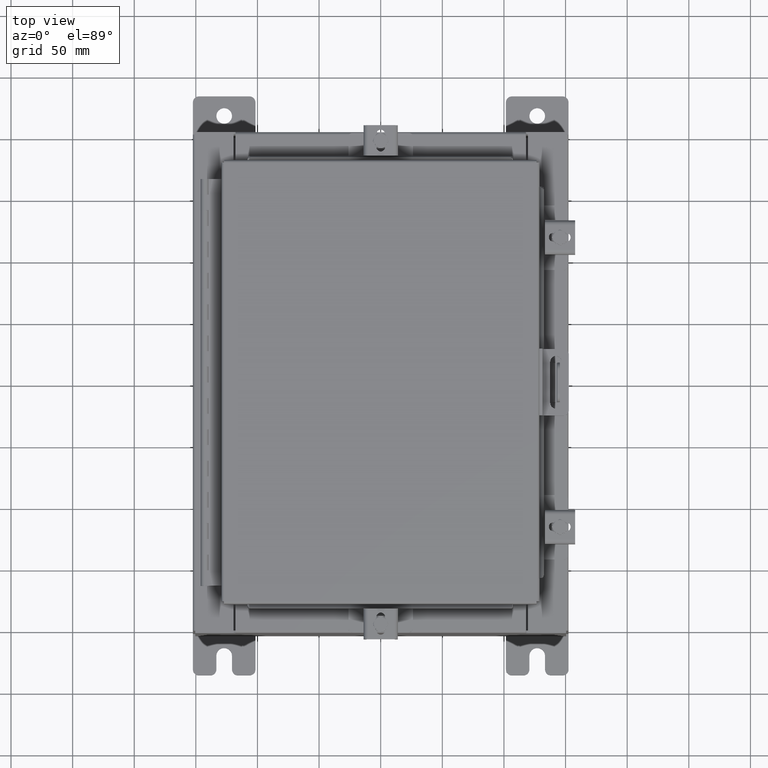
[diagram: clean part render]
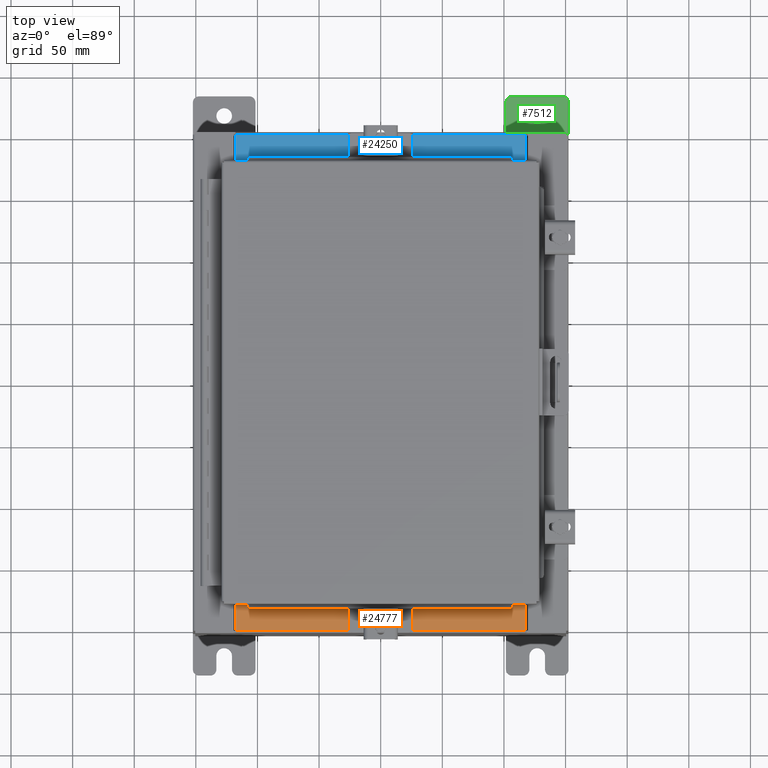
[diagram: same view with three faces highlighted in distinct colors, each labeled with its STEP entity id]
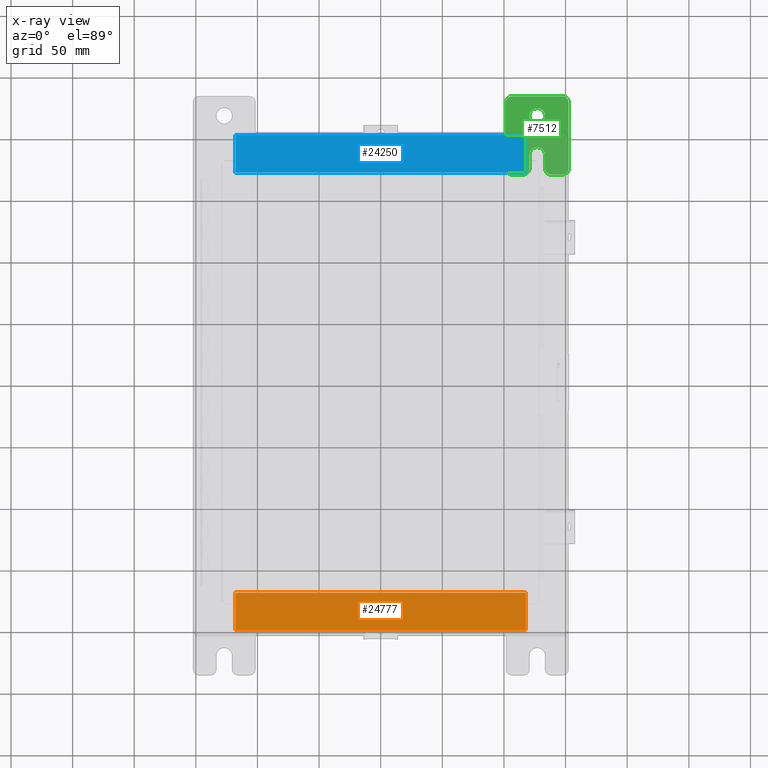
[diagram: x-ray of the same camera — body ghosted, the three highlighted faces saturated]
A machine part, top view with three faces highlighted in distinct colors.
The next image is the same camera in x-ray (body ghosted, the three faces saturated) — at least one of them is partly hidden behind the body in this view.
Their STEP definitions:

[orange] entity #24777 — the highlighted planar face has unit normal (-0, -0, 1).
#30 = VERTEX_POINT ( 'NONE', #6710 ) ;
#296 = AXIS2_PLACEMENT_3D ( 'NONE', #13211, #19260, #7226 ) ;
#2233 = CARTESIAN_POINT ( 'NONE',  ( -4.637199999999999100, -0.07469999999999973900, 3.000000000000000400 ) ) ;
#2437 = VERTEX_POINT ( 'NONE', #16161 ) ;
#2722 = ORIENTED_EDGE ( 'NONE', *, *, #14033, .F. ) ;
#2770 = VERTEX_POINT ( 'NONE', #21609 ) ;
#4958 = VECTOR ( 'NONE', #22369, 39.37007874015748100 ) ;
#5219 = PLANE ( 'NONE',  #296 ) ;
#6675 = DIRECTION ( 'NONE',  ( -1.000000000000000000, 0.0000000000000000000, 0.0000000000000000000 ) ) ;
#6710 = CARTESIAN_POINT ( 'NONE',  ( -4.637199999999999100, -1.287299999999999200, 3.000000000000004400 ) ) ;
#7226 = DIRECTION ( 'NONE',  ( 0.0000000000000000000, -1.000000000000000000, 3.566381192773190000E-015 ) ) ;
#7733 = CARTESIAN_POINT ( 'NONE',  ( 4.637200000000001800, -1.300299999999999800, 3.000000000000004400 ) ) ;
#7897 = ORIENTED_EDGE ( 'NONE', *, *, #25201, .T. ) ;
#8966 = EDGE_LOOP ( 'NONE', ( #2722, #11677, #20743, #7897 ) ) ;
#10284 = LINE ( 'NONE', #2233, #4958 ) ;
#10711 = CARTESIAN_POINT ( 'NONE',  ( 4.637200000000001800, -1.287299999999999900, 3.000000000000004000 ) ) ;
#11657 = VECTOR ( 'NONE', #11784, 39.37007874015748100 ) ;
#11677 = ORIENTED_EDGE ( 'NONE', *, *, #23653, .F. ) ;
#11784 = DIRECTION ( 'NONE',  ( -0.0000000000000000000, -1.000000000000000000, 3.566381192773190000E-015 ) ) ;
#12016 = EDGE_CURVE ( 'NONE', #2770, #2437, #16983, .T. ) ;
#12741 = LINE ( 'NONE', #10711, #17436 ) ;
#13154 = VERTEX_POINT ( 'NONE', #17473 ) ;
#13211 = CARTESIAN_POINT ( 'NONE',  ( 0.0000000000000000000, 1.069354855923099500E-014, 3.000000000000000400 ) ) ;
#14033 = EDGE_CURVE ( 'NONE', #30, #13154, #10284, .T. ) ;
#15218 = VECTOR ( 'NONE', #6675, 39.37007874015748100 ) ;
#15822 = LINE ( 'NONE', #20738, #15218 ) ;
#16161 = CARTESIAN_POINT ( 'NONE',  ( 4.637200000000001800, -1.287299999999999900, 3.000000000000004400 ) ) ;
#16983 = LINE ( 'NONE', #7733, #11657 ) ;
#17436 = VECTOR ( 'NONE', #24778, 39.37007874015748100 ) ;
#17473 = CARTESIAN_POINT ( 'NONE',  ( -4.637199999999999100, -0.08770000000000026400, 3.000000000000000400 ) ) ;
#19260 = DIRECTION ( 'NONE',  ( 0.0000000000000000000, 3.566381192773190000E-015, 1.000000000000000000 ) ) ;
#20738 = CARTESIAN_POINT ( 'NONE',  ( 0.0000000000000000000, -0.08770000000000026400, 3.000000000000000900 ) ) ;
#20743 = ORIENTED_EDGE ( 'NONE', *, *, #12016, .F. ) ;
#21609 = CARTESIAN_POINT ( 'NONE',  ( 4.637200000000001800, -0.08769999999999993100, 3.000000000000000400 ) ) ;
#22369 = DIRECTION ( 'NONE',  ( -0.0000000000000000000, 1.000000000000000000, -3.566381192773190000E-015 ) ) ;
#23653 = EDGE_CURVE ( 'NONE', #2437, #30, #12741, .T. ) ;
#24777 = ADVANCED_FACE ( 'NONE', ( #25924 ), #5219, .T. ) ;
#24778 = DIRECTION ( 'NONE',  ( -1.000000000000000000, 0.0000000000000000000, 0.0000000000000000000 ) ) ;
#25201 = EDGE_CURVE ( 'NONE', #2770, #13154, #15822, .T. ) ;
#25924 = FACE_OUTER_BOUND ( 'NONE', #8966, .T. ) ;

[blue] entity #24250 — the highlighted planar face has unit normal (0, 0, 1).
#300 = VECTOR ( 'NONE', #11876, 39.37007874015748100 ) ;
#1165 = CARTESIAN_POINT ( 'NONE',  ( 4.637200000000001800, -1.300299999999999800, 3.000000000000004400 ) ) ;
#2695 = CARTESIAN_POINT ( 'NONE',  ( 4.637200000000001800, -1.287299999999999900, 3.000000000000004400 ) ) ;
#4373 = CARTESIAN_POINT ( 'NONE',  ( 0.0000000000000000000, 1.069354855923099500E-014, 3.000000000000000400 ) ) ;
#4727 = LINE ( 'NONE', #1165, #15395 ) ;
#7647 = EDGE_CURVE ( 'NONE', #21795, #14990, #14866, .T. ) ;
#7861 = ORIENTED_EDGE ( 'NONE', *, *, #7647, .F. ) ;
#8278 = ORIENTED_EDGE ( 'NONE', *, *, #20725, .T. ) ;
#9375 = AXIS2_PLACEMENT_3D ( 'NONE', #4373, #24493, #12455 ) ;
#11282 = VECTOR ( 'NONE', #15783, 39.37007874015748100 ) ;
#11876 = DIRECTION ( 'NONE',  ( -1.000000000000000000, 0.0000000000000000000, 0.0000000000000000000 ) ) ;
#12455 = DIRECTION ( 'NONE',  ( 0.0000000000000000000, -1.000000000000000000, 3.566381192773190000E-015 ) ) ;
#12478 = CARTESIAN_POINT ( 'NONE',  ( -4.637199999999999100, -1.287299999999999200, 3.000000000000004400 ) ) ;
#12598 = CARTESIAN_POINT ( 'NONE',  ( 4.637200000000001800, -0.08769999999999993100, 3.000000000000000400 ) ) ;
#12953 = VERTEX_POINT ( 'NONE', #2695 ) ;
#13217 = DIRECTION ( 'NONE',  ( -0.0000000000000000000, -1.000000000000000000, 3.566381192773190000E-015 ) ) ;
#13249 = EDGE_CURVE ( 'NONE', #12953, #21795, #23217, .T. ) ;
#14384 = PLANE ( 'NONE',  #9375 ) ;
#14866 = LINE ( 'NONE', #15893, #15487 ) ;
#14906 = EDGE_LOOP ( 'NONE', ( #7861, #17097, #21912, #8278 ) ) ;
#14990 = VERTEX_POINT ( 'NONE', #22700 ) ;
#15395 = VECTOR ( 'NONE', #13217, 39.37007874015748100 ) ;
#15487 = VECTOR ( 'NONE', #19971, 39.37007874015748100 ) ;
#15693 = LINE ( 'NONE', #23905, #300 ) ;
#15783 = DIRECTION ( 'NONE',  ( -1.000000000000000000, 0.0000000000000000000, 0.0000000000000000000 ) ) ;
#15893 = CARTESIAN_POINT ( 'NONE',  ( -4.637199999999999100, -0.07469999999999973900, 3.000000000000000400 ) ) ;
#17097 = ORIENTED_EDGE ( 'NONE', *, *, #13249, .F. ) ;
#19310 = VERTEX_POINT ( 'NONE', #12598 ) ;
#19971 = DIRECTION ( 'NONE',  ( -0.0000000000000000000, 1.000000000000000000, -3.566381192773190000E-015 ) ) ;
#20526 = EDGE_CURVE ( 'NONE', #19310, #12953, #4727, .T. ) ;
#20725 = EDGE_CURVE ( 'NONE', #19310, #14990, #15693, .T. ) ;
#20877 = FACE_OUTER_BOUND ( 'NONE', #14906, .T. ) ;
#21795 = VERTEX_POINT ( 'NONE', #12478 ) ;
#21912 = ORIENTED_EDGE ( 'NONE', *, *, #20526, .F. ) ;
#22700 = CARTESIAN_POINT ( 'NONE',  ( -4.637199999999999100, -0.08770000000000026400, 3.000000000000000400 ) ) ;
#23217 = LINE ( 'NONE', #23803, #11282 ) ;
#23803 = CARTESIAN_POINT ( 'NONE',  ( 4.637200000000001800, -1.287299999999999900, 3.000000000000004000 ) ) ;
#23905 = CARTESIAN_POINT ( 'NONE',  ( 0.0000000000000000000, -0.08770000000000026400, 3.000000000000000900 ) ) ;
#24250 = ADVANCED_FACE ( 'NONE', ( #20877 ), #14384, .T. ) ;
#24493 = DIRECTION ( 'NONE',  ( 0.0000000000000000000, 3.566381192773190000E-015, 1.000000000000000000 ) ) ;

[green] entity #7512 — the highlighted planar face has unit normal (0, 0, 1).
#76 = CARTESIAN_POINT ( 'NONE',  ( 0.0000000000000000000, -1.250000000000002200, 0.9999999999999992200 ) ) ;
#218 = EDGE_CURVE ( 'NONE', #9966, #22379, #1317, .T. ) ;
#241 = LINE ( 'NONE', #20045, #21002 ) ;
#288 = CARTESIAN_POINT ( 'NONE',  ( 0.0000000000000000000, -1.060000000000001600, 0.8099999999999978300 ) ) ;
#396 = VECTOR ( 'NONE', #16817, 39.37007874015748100 ) ;
#407 = VERTEX_POINT ( 'NONE', #20050 ) ;
#750 = CARTESIAN_POINT ( 'NONE',  ( 0.0000000000000000000, -1.250000000000005600, -1.000000000000006200 ) ) ;
#790 = ORIENTED_EDGE ( 'NONE', *, *, #4113, .T. ) ;
#798 = FACE_OUTER_BOUND ( 'NONE', #25269, .T. ) ;
#805 = DIRECTION ( 'NONE',  ( 1.000000000000000000, -0.0000000000000000000, -5.163192708025532000E-017 ) ) ;
#1317 = LINE ( 'NONE', #13383, #16082 ) ;
#1594 = AXIS2_PLACEMENT_3D ( 'NONE', #23515, #11492, #25537 ) ;
#1800 = CIRCLE ( 'NONE', #17558, 0.2499999999999999200 ) ;
#1915 = ORIENTED_EDGE ( 'NONE', *, *, #3581, .T. ) ;
#2082 = CARTESIAN_POINT ( 'NONE',  ( 4.168508244714285900E-016, 0.6249999999999992200, 0.2499999999999999200 ) ) ;
#2311 = DIRECTION ( 'NONE',  ( 0.0000000000000000000, 0.0000000000000000000, -1.000000000000000000 ) ) ;
#2440 = EDGE_CURVE ( 'NONE', #7879, #6697, #10596, .T. ) ;
#2537 = DIRECTION ( 'NONE',  ( 0.0000000000000000000, 1.639108796198553600E-015, 1.000000000000000000 ) ) ;
#2542 = CIRCLE ( 'NONE', #23337, 0.1900000000000011400 ) ;
#2790 = ORIENTED_EDGE ( 'NONE', *, *, #8254, .T. ) ;
#2896 = CARTESIAN_POINT ( 'NONE',  ( 4.780733988912460100E-016, -0.6249999999999993300, -0.2499999999999998600 ) ) ;
#2898 = VECTOR ( 'NONE', #11067, 39.37007874015748100 ) ;
#2913 = ORIENTED_EDGE ( 'NONE', *, *, #6349, .F. ) ;
#3349 = CIRCLE ( 'NONE', #17180, 0.1900000000000011100 ) ;
#3442 = EDGE_CURVE ( 'NONE', #15926, #7879, #4590, .T. ) ;
#3581 = EDGE_CURVE ( 'NONE', #18664, #4330, #22539, .T. ) ;
#3768 = EDGE_CURVE ( 'NONE', #21402, #15154, #3349, .T. ) ;
#3772 = CARTESIAN_POINT ( 'NONE',  ( 0.0000000000000000000, -1.250000000000003100, 0.4400000000000020000 ) ) ;
#4113 = EDGE_CURVE ( 'NONE', #23717, #10267, #24193, .T. ) ;
#4179 = ORIENTED_EDGE ( 'NONE', *, *, #3768, .T. ) ;
#4330 = VERTEX_POINT ( 'NONE', #25261 ) ;
#4590 = CIRCLE ( 'NONE', #24437, 0.1900000000000011100 ) ;
#4691 = CARTESIAN_POINT ( 'NONE',  ( 0.0000000000000000000, -1.060000000000001200, 0.9999999999999988900 ) ) ;
#5018 = CARTESIAN_POINT ( 'NONE',  ( 6.829619984160658000E-017, -1.250000000000003800, 0.2500000000000005000 ) ) ;
#5264 = VECTOR ( 'NONE', #24175, 39.37007874015748100 ) ;
#5567 = CARTESIAN_POINT ( 'NONE',  ( 0.0000000000000000000, 1.059999999999996300, 0.8099999999999938400 ) ) ;
#5570 = DIRECTION ( 'NONE',  ( 1.000000000000000000, 0.0000000000000000000, -0.0000000000000000000 ) ) ;
#6349 = EDGE_CURVE ( 'NONE', #8564, #21331, #9616, .T. ) ;
#6451 = CIRCLE ( 'NONE', #17946, 0.1900000000000011100 ) ;
#6562 = CARTESIAN_POINT ( 'NONE',  ( 1.928684683526964400E-016, -1.060000000000003400, -0.2499999999999994400 ) ) ;
#6697 = VERTEX_POINT ( 'NONE', #3772 ) ;
#6859 = LINE ( 'NONE', #16573, #18167 ) ;
#7118 = ORIENTED_EDGE ( 'NONE', *, *, #21927, .T. ) ;
#7144 = CARTESIAN_POINT ( 'NONE',  ( 0.0000000000000000000, 1.059999999999996500, 0.9999999999999953400 ) ) ;
#7412 = EDGE_LOOP ( 'NONE', ( #11061, #2913 ) ) ;
#7512 = ADVANCED_FACE ( 'NONE', ( #22183, #798 ), #21541, .T. ) ;
#7565 = DIRECTION ( 'NONE',  ( 0.0000000000000000000, 0.0000000000000000000, -1.000000000000000000 ) ) ;
#7879 = VERTEX_POINT ( 'NONE', #9939 ) ;
#8119 = ORIENTED_EDGE ( 'NONE', *, *, #218, .T. ) ;
#8123 = CARTESIAN_POINT ( 'NONE',  ( 0.0000000000000000000, -1.250000000000005300, -0.8100000000000047200 ) ) ;
#8222 = LINE ( 'NONE', #5018, #2898 ) ;
#8254 = EDGE_CURVE ( 'NONE', #18351, #10457, #8222, .T. ) ;
#8301 = ORIENTED_EDGE ( 'NONE', *, *, #3442, .T. ) ;
#8340 = AXIS2_PLACEMENT_3D ( 'NONE', #19532, #23561, #11535 ) ;
#8564 = VERTEX_POINT ( 'NONE', #2082 ) ;
#9006 = EDGE_CURVE ( 'NONE', #6697, #18351, #2542, .T. ) ;
#9616 = CIRCLE ( 'NONE', #22962, 0.2499999999999999200 ) ;
#9939 = CARTESIAN_POINT ( 'NONE',  ( 0.0000000000000000000, -1.250000000000002400, 0.8099999999999980500 ) ) ;
#9966 = VERTEX_POINT ( 'NONE', #23927 ) ;
#10267 = VERTEX_POINT ( 'NONE', #6562 ) ;
#10457 = VERTEX_POINT ( 'NONE', #11113 ) ;
#10596 = LINE ( 'NONE', #76, #5264 ) ;
#10695 = ORIENTED_EDGE ( 'NONE', *, *, #18718, .T. ) ;
#10788 = DIRECTION ( 'NONE',  ( -1.000000000000000000, 6.523827964459549700E-016, 5.163192708025532000E-017 ) ) ;
#10885 = CARTESIAN_POINT ( 'NONE',  ( 0.0000000000000000000, -1.060000000000002100, 0.4400000000000016700 ) ) ;
#10980 = CARTESIAN_POINT ( 'NONE',  ( 4.039428427013647300E-016, 0.6249999999999992200, -9.783840404509077400E-018 ) ) ;
#11061 = ORIENTED_EDGE ( 'NONE', *, *, #25300, .F. ) ;
#11067 = DIRECTION ( 'NONE',  ( 6.556435184794182400E-016, 1.000000000000000000, 0.0000000000000000000 ) ) ;
#11101 = CARTESIAN_POINT ( 'NONE',  ( 0.0000000000000000000, 1.059999999999993600, -0.8100000000000089400 ) ) ;
#11113 = CARTESIAN_POINT ( 'NONE',  ( 0.0000000000000000000, -0.6249999999999992200, 0.2500000000000005000 ) ) ;
#11492 = DIRECTION ( 'NONE',  ( 1.000000000000000000, 0.0000000000000000000, -0.0000000000000000000 ) ) ;
#11535 = DIRECTION ( 'NONE',  ( -0.0000000000000000000, 0.0000000000000000000, -1.000000000000000000 ) ) ;
#12333 = CARTESIAN_POINT ( 'NONE',  ( 1.928684683526972300E-016, -1.060000000000002100, 0.2500000000000005000 ) ) ;
#12838 = CARTESIAN_POINT ( 'NONE',  ( 4.039428427013647300E-016, 0.6249999999999992200, -9.783840404509077400E-018 ) ) ;
#12906 = DIRECTION ( 'NONE',  ( 0.0000000000000000000, 0.0000000000000000000, -1.000000000000000000 ) ) ;
#13000 = DIRECTION ( 'NONE',  ( -5.163192708025533800E-017, 0.0000000000000000000, -1.000000000000000000 ) ) ;
#13126 = DIRECTION ( 'NONE',  ( 0.0000000000000000000, 0.0000000000000000000, -1.000000000000000000 ) ) ;
#13333 = CIRCLE ( 'NONE', #17300, 0.2499999999999999200 ) ;
#13383 = CARTESIAN_POINT ( 'NONE',  ( 0.0000000000000000000, -1.250000000000002200, 0.9999999999999992200 ) ) ;
#13488 = EDGE_CURVE ( 'NONE', #4330, #21402, #6859, .T. ) ;
#13646 = CARTESIAN_POINT ( 'NONE',  ( 0.0000000000000000000, 1.059999999999993400, -1.000000000000010000 ) ) ;
#13736 = EDGE_CURVE ( 'NONE', #10267, #9966, #17210, .T. ) ;
#13863 = CARTESIAN_POINT ( 'NONE',  ( 3.910348609313009100E-016, 0.6249999999999992200, -0.2499999999999999200 ) ) ;
#13933 = ORIENTED_EDGE ( 'NONE', *, *, #21734, .T. ) ;
#14053 = DIRECTION ( 'NONE',  ( 0.0000000000000000000, -1.000000000000000000, 1.639108796198558100E-015 ) ) ;
#14363 = DIRECTION ( 'NONE',  ( 1.000000000000000000, 0.0000000000000000000, -0.0000000000000000000 ) ) ;
#14861 = DIRECTION ( 'NONE',  ( -5.163192708025533800E-017, 0.0000000000000000000, -1.000000000000000000 ) ) ;
#15154 = VERTEX_POINT ( 'NONE', #7144 ) ;
#15267 = EDGE_CURVE ( 'NONE', #22379, #407, #6451, .T. ) ;
#15926 = VERTEX_POINT ( 'NONE', #4691 ) ;
#16082 = VECTOR ( 'NONE', #21362, 39.37007874015748100 ) ;
#16573 = CARTESIAN_POINT ( 'NONE',  ( 0.0000000000000000000, 1.249999999999994200, -1.000000000000010400 ) ) ;
#16817 = DIRECTION ( 'NONE',  ( 0.0000000000000000000, 1.000000000000000000, -1.639108796198558100E-015 ) ) ;
#17051 = LINE ( 'NONE', #750, #396 ) ;
#17180 = AXIS2_PLACEMENT_3D ( 'NONE', #5567, #19629, #7565 ) ;
#17210 = CIRCLE ( 'NONE', #1594, 0.1900000000000011100 ) ;
#17300 = AXIS2_PLACEMENT_3D ( 'NONE', #10980, #25040, #13000 ) ;
#17558 = AXIS2_PLACEMENT_3D ( 'NONE', #22825, #10788, #24855 ) ;
#17590 = CARTESIAN_POINT ( 'NONE',  ( 0.0000000000000000000, -1.060000000000004100, -0.8100000000000050500 ) ) ;
#17849 = ORIENTED_EDGE ( 'NONE', *, *, #15267, .T. ) ;
#17946 = AXIS2_PLACEMENT_3D ( 'NONE', #17590, #5570, #19630 ) ;
#18167 = VECTOR ( 'NONE', #2537, 39.37007874015748100 ) ;
#18351 = VERTEX_POINT ( 'NONE', #12333 ) ;
#18514 = CARTESIAN_POINT ( 'NONE',  ( 4.780733988912460100E-016, -0.6249999999999993300, -0.2499999999999993900 ) ) ;
#18664 = VERTEX_POINT ( 'NONE', #13646 ) ;
#18718 = EDGE_CURVE ( 'NONE', #407, #18664, #17051, .T. ) ;
#19532 = CARTESIAN_POINT ( 'NONE',  ( 0.0000000000000000000, 0.0000000000000000000, 0.0000000000000000000 ) ) ;
#19629 = DIRECTION ( 'NONE',  ( 1.000000000000000000, 0.0000000000000000000, -0.0000000000000000000 ) ) ;
#19630 = DIRECTION ( 'NONE',  ( 0.0000000000000000000, 0.0000000000000000000, -1.000000000000000000 ) ) ;
#19887 = ORIENTED_EDGE ( 'NONE', *, *, #13488, .T. ) ;
#20045 = CARTESIAN_POINT ( 'NONE',  ( 0.0000000000000000000, 1.249999999999997600, 0.9999999999999951200 ) ) ;
#20050 = CARTESIAN_POINT ( 'NONE',  ( 0.0000000000000000000, -1.060000000000004500, -1.000000000000006400 ) ) ;
#20558 = ORIENTED_EDGE ( 'NONE', *, *, #13736, .T. ) ;
#21002 = VECTOR ( 'NONE', #14053, 39.37007874015748100 ) ;
#21331 = VERTEX_POINT ( 'NONE', #13863 ) ;
#21362 = DIRECTION ( 'NONE',  ( 0.0000000000000000000, -1.639108796198553600E-015, -1.000000000000000000 ) ) ;
#21402 = VERTEX_POINT ( 'NONE', #23958 ) ;
#21541 = PLANE ( 'NONE',  #8340 ) ;
#21726 = AXIS2_PLACEMENT_3D ( 'NONE', #11101, #25159, #13126 ) ;
#21734 = EDGE_CURVE ( 'NONE', #15154, #15926, #241, .T. ) ;
#21753 = ORIENTED_EDGE ( 'NONE', *, *, #9006, .T. ) ;
#21785 = ORIENTED_EDGE ( 'NONE', *, *, #2440, .T. ) ;
#21927 = EDGE_CURVE ( 'NONE', #10457, #23717, #1800, .T. ) ;
#22183 = FACE_BOUND ( 'NONE', #7412, .T. ) ;
#22379 = VERTEX_POINT ( 'NONE', #8123 ) ;
#22473 = DIRECTION ( 'NONE',  ( -6.556435184794182400E-016, -1.000000000000000000, -1.639108796198545600E-016 ) ) ;
#22539 = CIRCLE ( 'NONE', #21726, 0.1900000000000011100 ) ;
#22825 = CARTESIAN_POINT ( 'NONE',  ( 4.780733988912460100E-016, -0.6249999999999993300, 5.858939755051854500E-017 ) ) ;
#22962 = AXIS2_PLACEMENT_3D ( 'NONE', #12838, #805, #14861 ) ;
#23337 = AXIS2_PLACEMENT_3D ( 'NONE', #10885, #24941, #12906 ) ;
#23515 = CARTESIAN_POINT ( 'NONE',  ( 0.0000000000000000000, -1.060000000000003400, -0.4400000000000005000 ) ) ;
#23561 = DIRECTION ( 'NONE',  ( 1.000000000000000000, 0.0000000000000000000, -0.0000000000000000000 ) ) ;
#23717 = VERTEX_POINT ( 'NONE', #2896 ) ;
#23927 = CARTESIAN_POINT ( 'NONE',  ( 0.0000000000000000000, -1.250000000000004700, -0.4400000000000002200 ) ) ;
#23958 = CARTESIAN_POINT ( 'NONE',  ( 0.0000000000000000000, 1.249999999999997300, 0.8099999999999935000 ) ) ;
#24175 = DIRECTION ( 'NONE',  ( 0.0000000000000000000, -1.639108796198553600E-015, -1.000000000000000000 ) ) ;
#24193 = LINE ( 'NONE', #18514, #24828 ) ;
#24437 = AXIS2_PLACEMENT_3D ( 'NONE', #288, #14363, #2311 ) ;
#24828 = VECTOR ( 'NONE', #22473, 39.37007874015748100 ) ;
#24855 = DIRECTION ( 'NONE',  ( -6.523827964459551700E-016, -1.000000000000000000, 0.0000000000000000000 ) ) ;
#24941 = DIRECTION ( 'NONE',  ( 1.000000000000000000, 0.0000000000000000000, -0.0000000000000000000 ) ) ;
#25040 = DIRECTION ( 'NONE',  ( 1.000000000000000000, -0.0000000000000000000, -5.163192708025532000E-017 ) ) ;
#25159 = DIRECTION ( 'NONE',  ( 1.000000000000000000, 0.0000000000000000000, -0.0000000000000000000 ) ) ;
#25261 = CARTESIAN_POINT ( 'NONE',  ( 0.0000000000000000000, 1.249999999999994700, -0.8100000000000092700 ) ) ;
#25269 = EDGE_LOOP ( 'NONE', ( #13933, #8301, #21785, #21753, #2790, #7118, #790, #20558, #8119, #17849, #10695, #1915, #19887, #4179 ) ) ;
#25300 = EDGE_CURVE ( 'NONE', #21331, #8564, #13333, .T. ) ;
#25537 = DIRECTION ( 'NONE',  ( 0.0000000000000000000, 0.0000000000000000000, -1.000000000000000000 ) ) ;